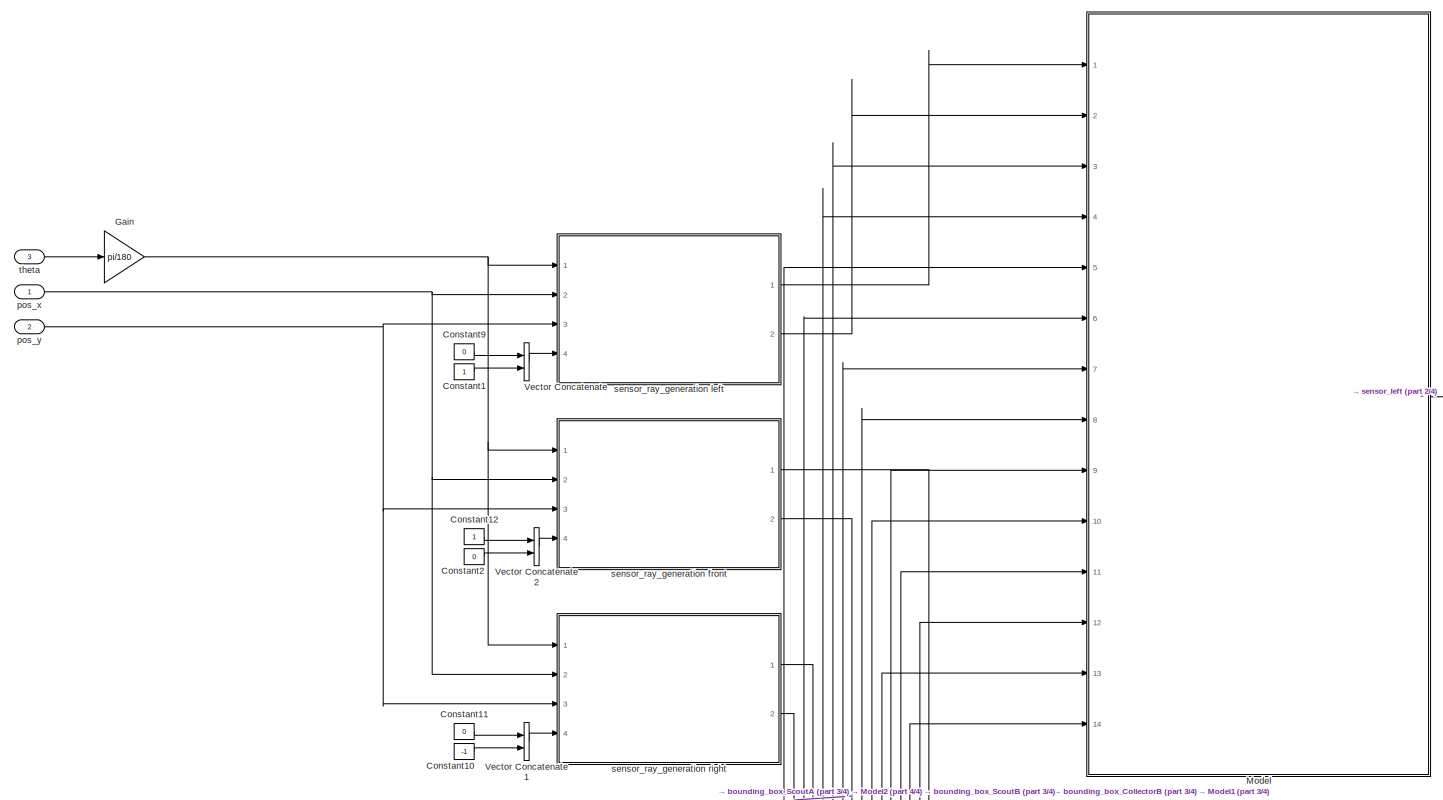
[diagram: root canvas - part 1/4, full width, top band]
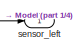
[diagram: root canvas - part 2/4, top right region]
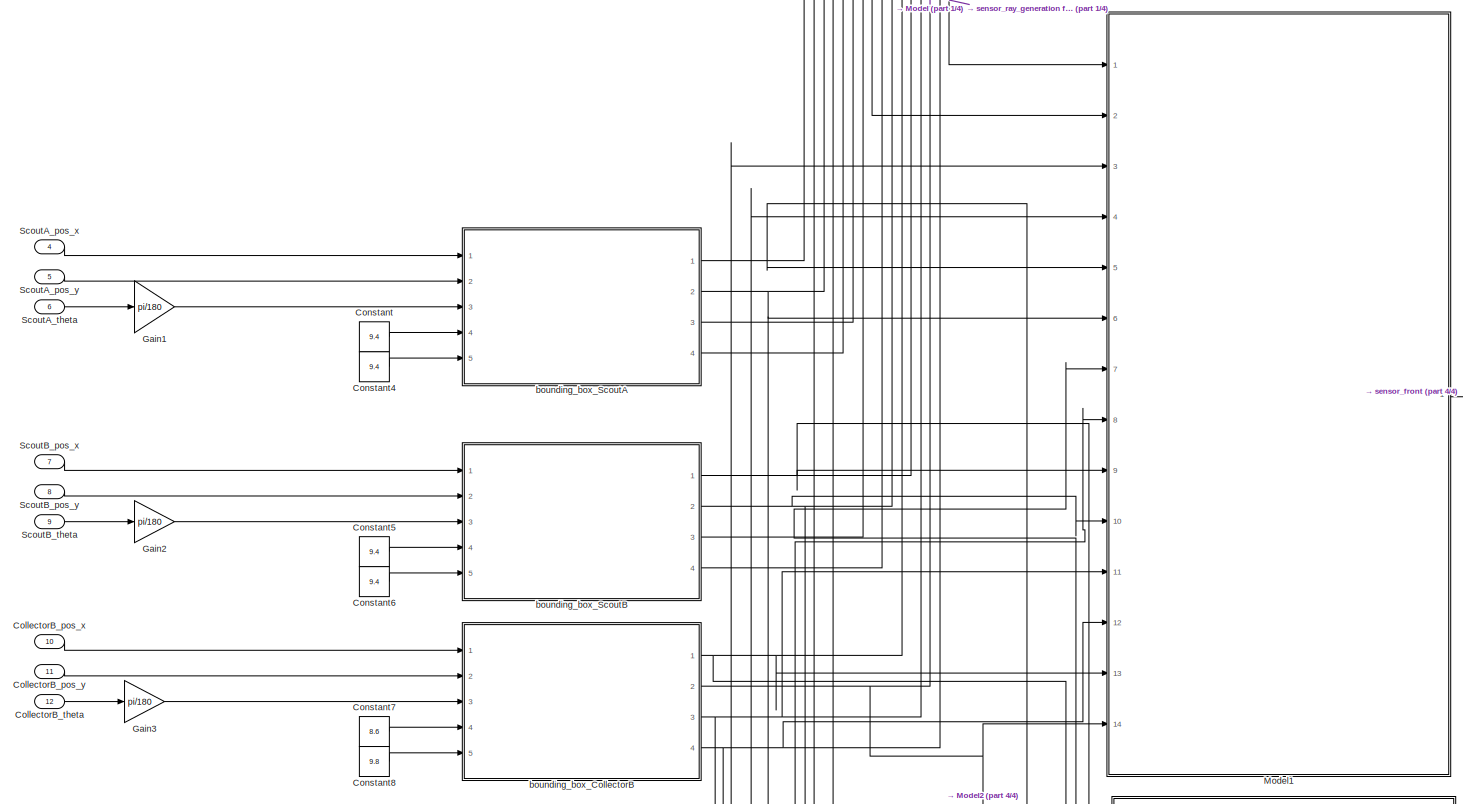
[diagram: root canvas - part 3/4, full width, middle band]
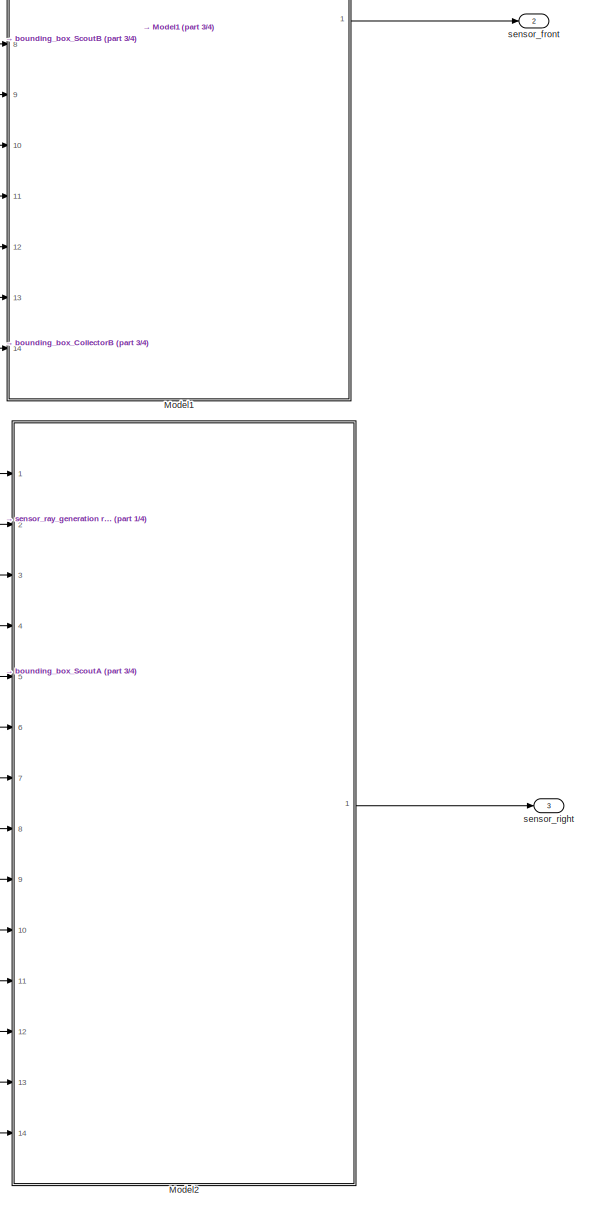
[diagram: root canvas - part 4/4, bottom right region]
MODEL slx_f40242ce3ebc
KIND model
CONFIG AbsTol = auto
CONFIG EnableMultiTasking = off
CONFIG FixedStep = 0.01
CONFIG MaxStep = .001
CONFIG MinStep = auto
CONFIG RelTol = 1e-3
CONFIG SampleTimeConstraint = Unconstrained
CONFIG Solver = VariableStepAuto
CONFIG SolverName = VariableStepAuto
CONFIG StartTime = 0.0
CONFIG StopTime = 120
BLOCK [Inport] CollectorB_pos_x
  IconDisplay = Port number
  OutDataTypeStr = double
  Port = 10
  PortDimensions = 1
  SampleTime = 0
  SamplingMode = Sample based
  SignalType = real
BLOCK [Inport] CollectorB_pos_y
  IconDisplay = Port number
  OutDataTypeStr = double
  Port = 11
  PortDimensions = 1
  SampleTime = 0
  SamplingMode = Sample based
  SignalType = real
BLOCK [Inport] CollectorB_theta
  IconDisplay = Port number
  OutDataTypeStr = double
  Port = 12
  PortDimensions = 1
  SampleTime = 0
  SamplingMode = Sample based
  SignalType = real
BLOCK [Constant] Constant
  Value = 9.4
BLOCK [Constant] Constant1
BLOCK [Constant] Constant10
  Value = -1
BLOCK [Constant] Constant11
  Value = 0
BLOCK [Constant] Constant12
BLOCK [Constant] Constant2
  Value = 0
BLOCK [Constant] Constant4
  Value = 9.4
BLOCK [Constant] Constant5
  Value = 9.4
BLOCK [Constant] Constant6
  Value = 9.4
BLOCK [Constant] Constant7
  Value = 8.6
BLOCK [Constant] Constant8
  Value = 9.8
BLOCK [Constant] Constant9
  Value = 0
BLOCK [Gain] Gain
  Gain = pi/180
  OutDataTypeStr = Inherit: Inherit via internal rule
  ParamDataTypeStr = Inherit: Inherit via internal rule
  SaturateOnIntegerOverflow = off
BLOCK [Gain] Gain1
  Gain = pi/180
  OutDataTypeStr = Inherit: Inherit via internal rule
  ParamDataTypeStr = Inherit: Inherit via internal rule
  SaturateOnIntegerOverflow = off
BLOCK [Gain] Gain2
  Gain = pi/180
  OutDataTypeStr = Inherit: Inherit via internal rule
  ParamDataTypeStr = Inherit: Inherit via internal rule
  SaturateOnIntegerOverflow = off
BLOCK [Gain] Gain3
  Gain = pi/180
  OutDataTypeStr = Inherit: Inherit via internal rule
  ParamDataTypeStr = Inherit: Inherit via internal rule
  SaturateOnIntegerOverflow = off
BLOCK [ModelReference] Model
  ModelNameDialog = prox_sensor_gen
  ModelReferenceVersion = 1.2
  Ports = [14, 1]
BLOCK [ModelReference] Model1
  ModelNameDialog = prox_sensor_gen
  ModelReferenceVersion = 1.2
  Ports = [14, 1]
BLOCK [ModelReference] Model2
  ModelNameDialog = prox_sensor_gen
  ModelReferenceVersion = 1.2
  Ports = [14, 1]
BLOCK [Inport] ScoutA_pos_x
  IconDisplay = Port number
  OutDataTypeStr = double
  Port = 4
  PortDimensions = 1
  SampleTime = 0
  SamplingMode = Sample based
  SignalType = real
BLOCK [Inport] ScoutA_pos_y
  IconDisplay = Port number
  OutDataTypeStr = double
  Port = 5
  PortDimensions = 1
  SampleTime = 0
  SamplingMode = Sample based
  SignalType = real
BLOCK [Inport] ScoutA_theta
  IconDisplay = Port number
  OutDataTypeStr = double
  Port = 6
  PortDimensions = 1
  SampleTime = 0
  SamplingMode = Sample based
  SignalType = real
BLOCK [Inport] ScoutB_pos_x
  IconDisplay = Port number
  OutDataTypeStr = double
  Port = 7
  PortDimensions = 1
  SampleTime = 0
  SamplingMode = Sample based
  SignalType = real
BLOCK [Inport] ScoutB_pos_y
  IconDisplay = Port number
  OutDataTypeStr = double
  Port = 8
  PortDimensions = 1
  SampleTime = 0
  SamplingMode = Sample based
  SignalType = real
BLOCK [Inport] ScoutB_theta
  IconDisplay = Port number
  OutDataTypeStr = double
  Port = 9
  PortDimensions = 1
  SampleTime = 0
  SamplingMode = Sample based
  SignalType = real
BLOCK [Concatenate] Vector Concatenate
  Ports = [2, 1]
BLOCK [Concatenate] Vector Concatenate1
  Ports = [2, 1]
BLOCK [Concatenate] Vector Concatenate2
  Ports = [2, 1]
BLOCK [ModelReference] bounding_box_CollectorB
  ModelNameDialog = bounding_box_calc
  ModelReferenceVersion = 1.659
  Ports = [5, 4]
BLOCK [ModelReference] bounding_box_ScoutA
  ModelNameDialog = bounding_box_calc
  ModelReferenceVersion = 1.659
  Ports = [5, 4]
BLOCK [ModelReference] bounding_box_ScoutB
  ModelNameDialog = bounding_box_calc
  ModelReferenceVersion = 1.659
  Ports = [5, 4]
BLOCK [Inport] pos_x
  IconDisplay = Port number
  OutDataTypeStr = double
  PortDimensions = 1
  SampleTime = 0
  SamplingMode = Sample based
  SignalType = real
BLOCK [Inport] pos_y
  IconDisplay = Port number
  OutDataTypeStr = double
  Port = 2
  PortDimensions = 1
  SampleTime = 0
  SamplingMode = Sample based
  SignalType = real
BLOCK [Outport] sensor_front
  IconDisplay = Port number
  OutDataTypeStr = double
  Port = 2
  PortDimensions = 1
  SampleTime = 0
  SamplingMode = Sample based
  SignalType = real
BLOCK [Outport] sensor_left
  IconDisplay = Port number
  OutDataTypeStr = double
  PortDimensions = 1
  SampleTime = 0
  SamplingMode = Sample based
  SignalType = real
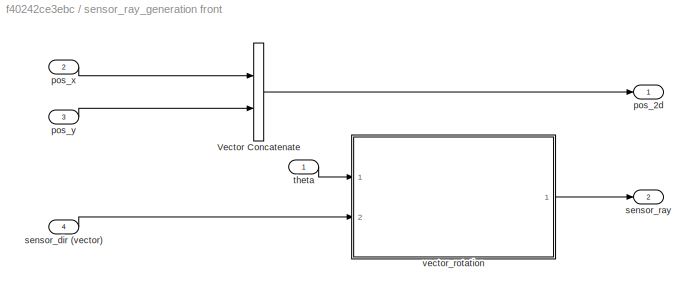
BLOCK [SubSystem] sensor_ray_generation front
  Ports = [4, 2]
  RequestExecContextInheritance = off
BLOCK [Concatenate] sensor_ray_generation front/Vector Concatenate
  Ports = [2, 1]
BLOCK [Outport] sensor_ray_generation front/pos_2d
  IconDisplay = Port number
BLOCK [Inport] sensor_ray_generation front/pos_x
  IconDisplay = Port number
  Port = 2
BLOCK [Inport] sensor_ray_generation front/pos_y
  IconDisplay = Port number
  Port = 3
BLOCK [Inport] sensor_ray_generation front/sensor_dir (vector) 
  IconDisplay = Port number
  Port = 4
BLOCK [Outport] sensor_ray_generation front/sensor_ray 
  IconDisplay = Port number
  Port = 2
BLOCK [Inport] sensor_ray_generation front/theta 
  IconDisplay = Port number
BLOCK [ModelReference] sensor_ray_generation front/vector_rotation
  ModelNameDialog = vector_rotation
  ModelReferenceVersion = 1.21
  Ports = [2, 1]
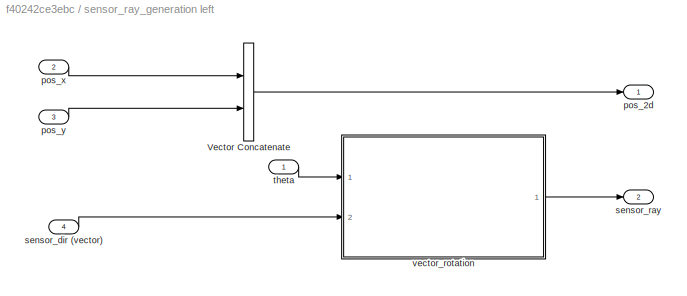
BLOCK [SubSystem] sensor_ray_generation left
  Ports = [4, 2]
  RequestExecContextInheritance = off
BLOCK [Concatenate] sensor_ray_generation left/Vector Concatenate
  Ports = [2, 1]
BLOCK [Outport] sensor_ray_generation left/pos_2d
  IconDisplay = Port number
BLOCK [Inport] sensor_ray_generation left/pos_x
  IconDisplay = Port number
  Port = 2
BLOCK [Inport] sensor_ray_generation left/pos_y
  IconDisplay = Port number
  Port = 3
BLOCK [Inport] sensor_ray_generation left/sensor_dir (vector) 
  IconDisplay = Port number
  Port = 4
BLOCK [Outport] sensor_ray_generation left/sensor_ray 
  IconDisplay = Port number
  Port = 2
BLOCK [Inport] sensor_ray_generation left/theta 
  IconDisplay = Port number
BLOCK [ModelReference] sensor_ray_generation left/vector_rotation
  ModelNameDialog = vector_rotation
  ModelReferenceVersion = 1.21
  Ports = [2, 1]
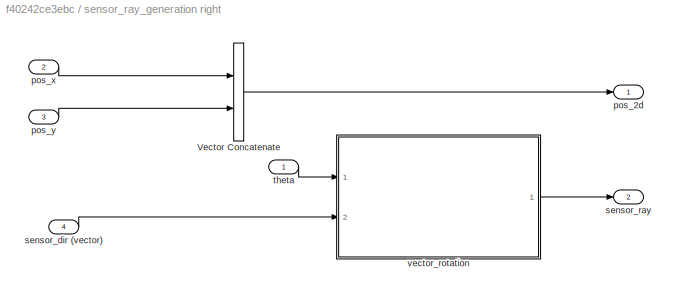
BLOCK [SubSystem] sensor_ray_generation right
  Ports = [4, 2]
  RequestExecContextInheritance = off
BLOCK [Concatenate] sensor_ray_generation right/Vector Concatenate
  Ports = [2, 1]
BLOCK [Outport] sensor_ray_generation right/pos_2d
  IconDisplay = Port number
BLOCK [Inport] sensor_ray_generation right/pos_x
  IconDisplay = Port number
  Port = 2
BLOCK [Inport] sensor_ray_generation right/pos_y
  IconDisplay = Port number
  Port = 3
BLOCK [Inport] sensor_ray_generation right/sensor_dir (vector) 
  IconDisplay = Port number
  Port = 4
BLOCK [Outport] sensor_ray_generation right/sensor_ray 
  IconDisplay = Port number
  Port = 2
BLOCK [Inport] sensor_ray_generation right/theta 
  IconDisplay = Port number
BLOCK [ModelReference] sensor_ray_generation right/vector_rotation
  ModelNameDialog = vector_rotation
  ModelReferenceVersion = 1.21
  Ports = [2, 1]
BLOCK [Outport] sensor_right 
  IconDisplay = Port number
  OutDataTypeStr = double
  Port = 3
  PortDimensions = 1
  SampleTime = 0
  SamplingMode = Sample based
  SignalType = real
BLOCK [Inport] theta
  IconDisplay = Port number
  OutDataTypeStr = double
  Port = 3
  PortDimensions = 1
  SampleTime = 0
  SamplingMode = Sample based
  SignalType = real
LINE CollectorB_pos_x:1 -> bounding_box_CollectorB:1
LINE CollectorB_pos_y:1 -> bounding_box_CollectorB:2
LINE CollectorB_theta:1 -> Gain3:1
LINE Constant10:1 -> Vector Concatenate1:2
LINE Constant11:1 -> Vector Concatenate1:1
LINE Constant12:1 -> Vector Concatenate2:1
LINE Constant1:1 -> Vector Concatenate:2
LINE Constant2:1 -> Vector Concatenate2:2
LINE Constant4:1 -> bounding_box_ScoutA:5
LINE Constant5:1 -> bounding_box_ScoutB:4
LINE Constant6:1 -> bounding_box_ScoutB:5
LINE Constant7:1 -> bounding_box_CollectorB:4
LINE Constant8:1 -> bounding_box_CollectorB:5
LINE Constant9:1 -> Vector Concatenate:1
LINE Constant:1 -> bounding_box_ScoutA:4
LINE Gain1:1 -> bounding_box_ScoutA:3
LINE Gain2:1 -> bounding_box_ScoutB:3
LINE Gain3:1 -> bounding_box_CollectorB:3
NET Gain:1 -> sensor_ray_generation front:1, sensor_ray_generation left:1, sensor_ray_generation right:1
LINE Model1:1 -> sensor_front:1
LINE Model2:1 -> sensor_right :1
LINE Model:1 -> sensor_left:1
LINE ScoutA_pos_x:1 -> bounding_box_ScoutA:1
LINE ScoutA_pos_y:1 -> bounding_box_ScoutA:2
LINE ScoutA_theta:1 -> Gain1:1
LINE ScoutB_pos_x:1 -> bounding_box_ScoutB:1
LINE ScoutB_pos_y:1 -> bounding_box_ScoutB:2
LINE ScoutB_theta:1 -> Gain2:1
LINE Vector Concatenate1:1 -> sensor_ray_generation right:4
LINE Vector Concatenate2:1 -> sensor_ray_generation front:4
LINE Vector Concatenate:1 -> sensor_ray_generation left:4
NET bounding_box_CollectorB:1 -> Model1:13, Model2:13, Model:13
NET bounding_box_CollectorB:2 -> Model1:14, Model2:14, Model:14
NET bounding_box_CollectorB:3 -> Model1:11, Model2:11, Model:11
NET bounding_box_CollectorB:4 -> Model1:12, Model2:12, Model:12
NET bounding_box_ScoutA:1 -> Model1:5, Model2:5, Model:5
NET bounding_box_ScoutA:2 -> Model1:6, Model2:6, Model:6
NET bounding_box_ScoutA:3 -> Model1:3, Model2:3, Model:3
NET bounding_box_ScoutA:4 -> Model1:4, Model2:4, Model:4
NET bounding_box_ScoutB:1 -> Model1:9, Model2:9, Model:9
NET bounding_box_ScoutB:2 -> Model1:10, Model2:10, Model:10
NET bounding_box_ScoutB:3 -> Model1:7, Model2:7, Model:7
NET bounding_box_ScoutB:4 -> Model1:8, Model2:8, Model:8
NET pos_x:1 -> sensor_ray_generation front:2, sensor_ray_generation left:2, sensor_ray_generation right:2
NET pos_y:1 -> sensor_ray_generation front:3, sensor_ray_generation left:3, sensor_ray_generation right:3
LINE sensor_ray_generation front/Vector Concatenate:1 -> sensor_ray_generation front/pos_2d:1
LINE sensor_ray_generation front/pos_x:1 -> sensor_ray_generation front/Vector Concatenate:1
LINE sensor_ray_generation front/pos_y:1 -> sensor_ray_generation front/Vector Concatenate:2
LINE sensor_ray_generation front/sensor_dir (vector) :1 -> sensor_ray_generation front/vector_rotation:2
LINE sensor_ray_generation front/theta :1 -> sensor_ray_generation front/vector_rotation:1
LINE sensor_ray_generation front/vector_rotation:1 -> sensor_ray_generation front/sensor_ray :1
LINE sensor_ray_generation front:1 -> Model1:1
LINE sensor_ray_generation front:2 -> Model1:2
LINE sensor_ray_generation left/Vector Concatenate:1 -> sensor_ray_generation left/pos_2d:1
LINE sensor_ray_generation left/pos_x:1 -> sensor_ray_generation left/Vector Concatenate:1
LINE sensor_ray_generation left/pos_y:1 -> sensor_ray_generation left/Vector Concatenate:2
LINE sensor_ray_generation left/sensor_dir (vector) :1 -> sensor_ray_generation left/vector_rotation:2
LINE sensor_ray_generation left/theta :1 -> sensor_ray_generation left/vector_rotation:1
LINE sensor_ray_generation left/vector_rotation:1 -> sensor_ray_generation left/sensor_ray :1
LINE sensor_ray_generation left:1 -> Model:1
LINE sensor_ray_generation left:2 -> Model:2
LINE sensor_ray_generation right/Vector Concatenate:1 -> sensor_ray_generation right/pos_2d:1
LINE sensor_ray_generation right/pos_x:1 -> sensor_ray_generation right/Vector Concatenate:1
LINE sensor_ray_generation right/pos_y:1 -> sensor_ray_generation right/Vector Concatenate:2
LINE sensor_ray_generation right/sensor_dir (vector) :1 -> sensor_ray_generation right/vector_rotation:2
LINE sensor_ray_generation right/theta :1 -> sensor_ray_generation right/vector_rotation:1
LINE sensor_ray_generation right/vector_rotation:1 -> sensor_ray_generation right/sensor_ray :1
LINE sensor_ray_generation right:1 -> Model2:1
LINE sensor_ray_generation right:2 -> Model2:2
LINE theta:1 -> Gain:1
note: NET lines group one-source signal fan-out (src -> all destinations, sorted); 1:1 wires keep LINE
